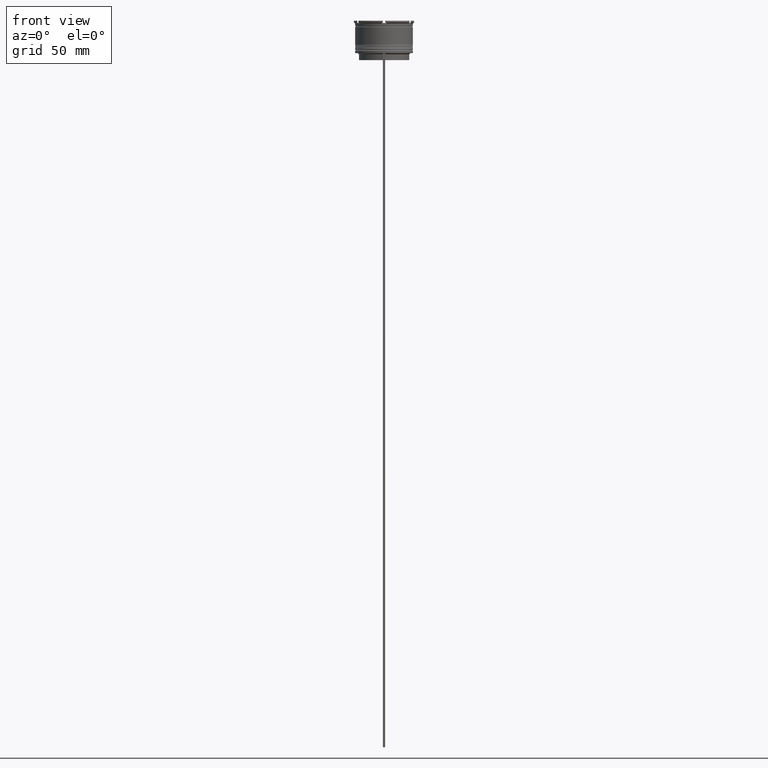
[diagram: clean part render]
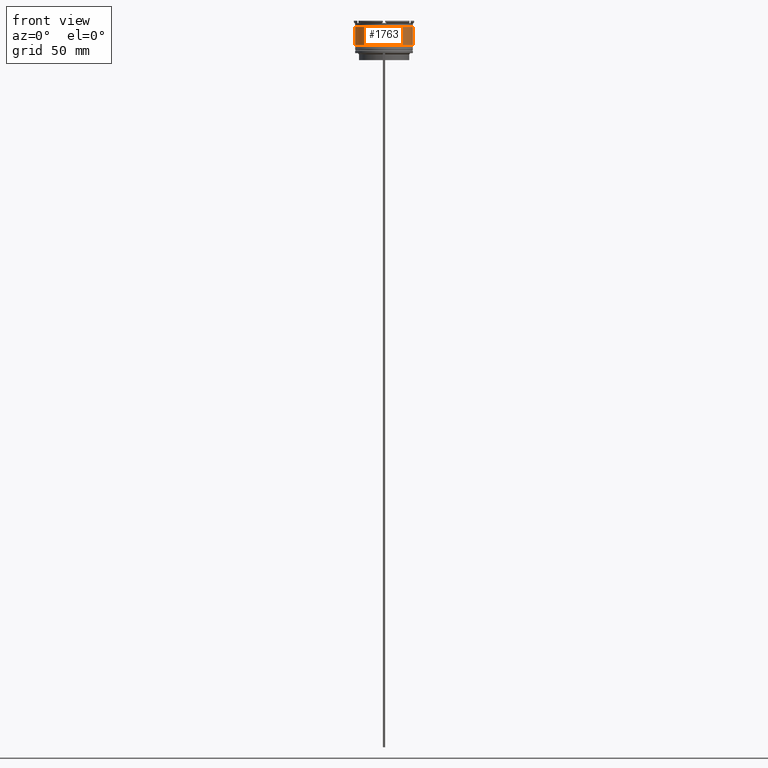
[diagram: same view with one face highlighted and labeled with its STEP entity id]
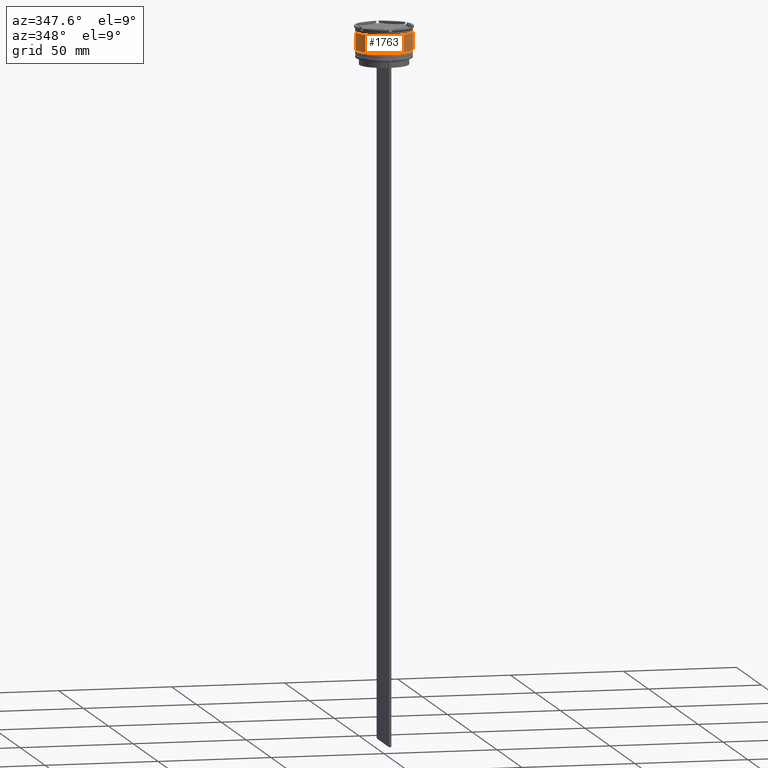
[diagram: same view with one face highlighted and labeled with its STEP entity id]
A machine part, front view. The second image highlights one B-rep face of the part: STEP entity #1763.
A second angle (auxiliary view) of the same face is appended — the face is thin or edge-on in the first view.
In plain terms, the highlighted cylindrical surface (edge-blend (fillet) strip) has radius 12.5 mm, axis along (-0, -0, 1).
Its self-contained STEP definition (entity closure, byte-faithful):
#96 = LINE ( 'NONE', #1012, #2580 ) ;
#177 = CARTESIAN_POINT ( 'NONE',  ( 0.000000000000000000, 0.000000000000000000, 0.000000000000000000 ) ) ;
#207 = CARTESIAN_POINT ( 'NONE',  ( 12.49999999999999822, 0.000000000000000000, -2.699999999999999289 ) ) ;
#291 = CARTESIAN_POINT ( 'NONE',  ( 0.000000000000000000, 0.000000000000000000, -2.699999999999999289 ) ) ;
#307 = CARTESIAN_POINT ( 'NONE',  ( 0.000000000000000000, 0.000000000000000000, -10.50000000000000178 ) ) ;
#344 = DIRECTION ( 'NONE',  ( -0.000000000000000000, -0.000000000000000000, 1.000000000000000000 ) ) ;
#542 = AXIS2_PLACEMENT_3D ( 'NONE', #177, #2842, #2563 ) ;
#547 = ORIENTED_EDGE ( 'NONE', *, *, #1273, .T. ) ;
#666 = CARTESIAN_POINT ( 'NONE',  ( -12.50000000000000355, 1.530808498934191916E-15, -10.50000000000000178 ) ) ;
#667 = VERTEX_POINT ( 'NONE', #1853 ) ;
#821 = DIRECTION ( 'NONE',  ( 1.000000000000000000, 0.000000000000000000, 0.000000000000000000 ) ) ;
#905 = VERTEX_POINT ( 'NONE', #207 ) ;
#914 = EDGE_CURVE ( 'NONE', #1966, #667, #1990, .T. ) ;
#1012 = CARTESIAN_POINT ( 'NONE',  ( 12.50000000000000000, 0.000000000000000000, 0.000000000000000000 ) ) ;
#1142 = VECTOR ( 'NONE', #1589, 1000.000000000000000 ) ;
#1195 = EDGE_CURVE ( 'NONE', #2119, #905, #96, .T. ) ;
#1273 = EDGE_CURVE ( 'NONE', #1966, #2119, #1329, .T. ) ;
#1303 = CARTESIAN_POINT ( 'NONE',  ( 12.50000000000000178, 0.000000000000000000, -10.50000000000000178 ) ) ;
#1329 = CIRCLE ( 'NONE', #2113, 12.50000000000000178 ) ;
#1453 = CARTESIAN_POINT ( 'NONE',  ( -12.50000000000000000, 1.530808498934191521E-15, 0.000000000000000000 ) ) ;
#1510 = FACE_OUTER_BOUND ( 'NONE', #1527, .T. ) ;
#1527 = EDGE_LOOP ( 'NONE', ( #1600, #547, #2088, #2800 ) ) ;
#1589 = DIRECTION ( 'NONE',  ( -0.000000000000000000, -0.000000000000000000, 1.000000000000000000 ) ) ;
#1600 = ORIENTED_EDGE ( 'NONE', *, *, #914, .F. ) ;
#1763 = ADVANCED_FACE ( 'NONE', ( #1510 ), #2617, .T. ) ;
#1853 = CARTESIAN_POINT ( 'NONE',  ( -12.49999999999999822, 1.530808498934191324E-15, -2.699999999999999289 ) ) ;
#1966 = VERTEX_POINT ( 'NONE', #666 ) ;
#1990 = LINE ( 'NONE', #1453, #1142 ) ;
#2027 = AXIS2_PLACEMENT_3D ( 'NONE', #291, #2879, #2752 ) ;
#2030 = CIRCLE ( 'NONE', #2027, 12.49999999999999822 ) ;
#2088 = ORIENTED_EDGE ( 'NONE', *, *, #1195, .T. ) ;
#2113 = AXIS2_PLACEMENT_3D ( 'NONE', #307, #2350, #821 ) ;
#2119 = VERTEX_POINT ( 'NONE', #1303 ) ;
#2350 = DIRECTION ( 'NONE',  ( -0.000000000000000000, -0.000000000000000000, 1.000000000000000000 ) ) ;
#2563 = DIRECTION ( 'NONE',  ( 1.000000000000000000, 0.000000000000000000, 0.000000000000000000 ) ) ;
#2580 = VECTOR ( 'NONE', #344, 1000.000000000000000 ) ;
#2617 = CYLINDRICAL_SURFACE ( 'NONE', #542, 12.50000000000000000 ) ;
#2752 = DIRECTION ( 'NONE',  ( 1.000000000000000000, 0.000000000000000000, 0.000000000000000000 ) ) ;
#2778 = EDGE_CURVE ( 'NONE', #667, #905, #2030, .T. ) ;
#2800 = ORIENTED_EDGE ( 'NONE', *, *, #2778, .F. ) ;
#2842 = DIRECTION ( 'NONE',  ( -0.000000000000000000, -0.000000000000000000, 1.000000000000000000 ) ) ;
#2879 = DIRECTION ( 'NONE',  ( -0.000000000000000000, -0.000000000000000000, 1.000000000000000000 ) ) ;